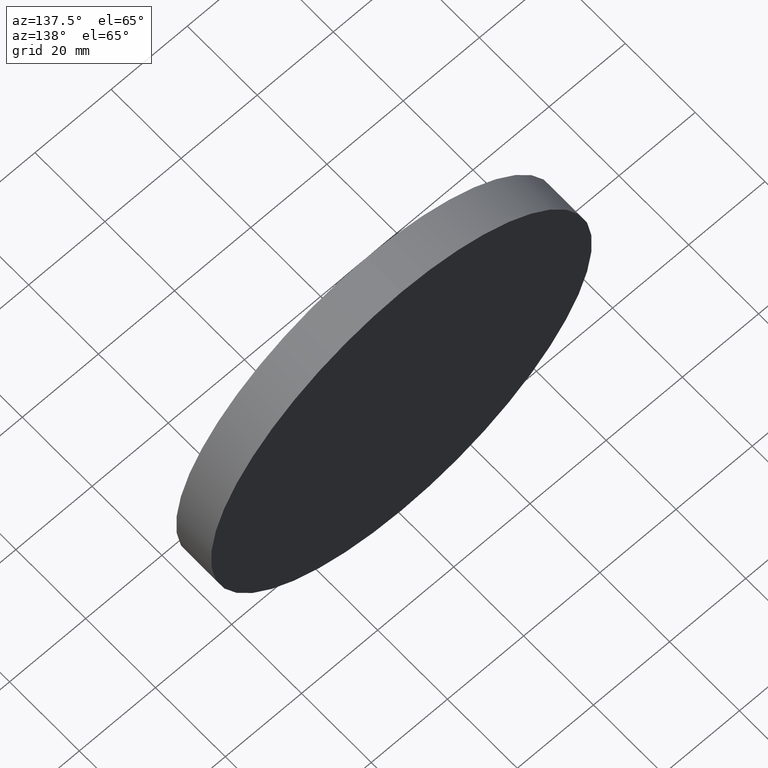
[diagram: clean part render]
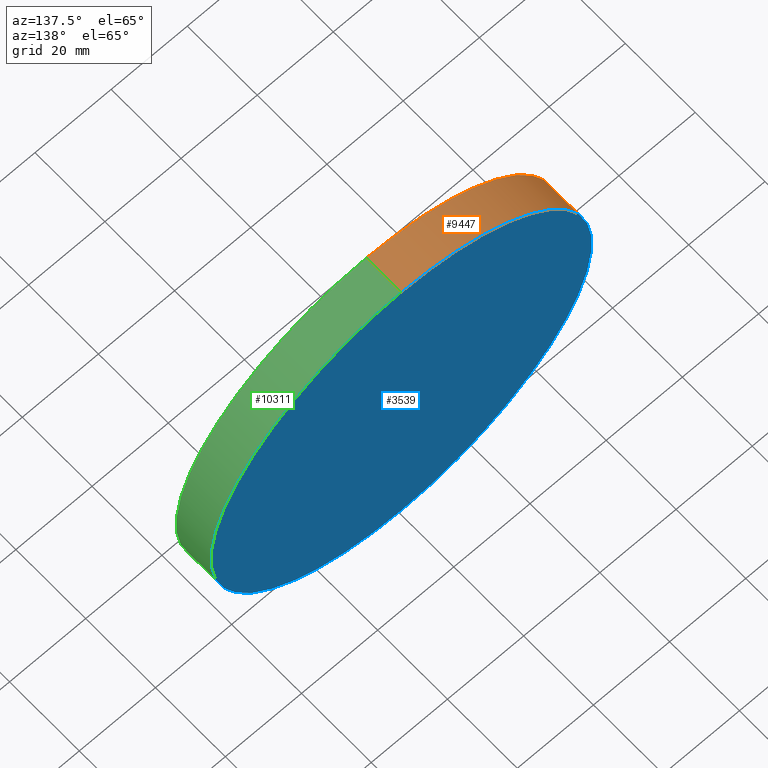
[diagram: same view with three faces highlighted in distinct colors, each labeled with its STEP entity id]
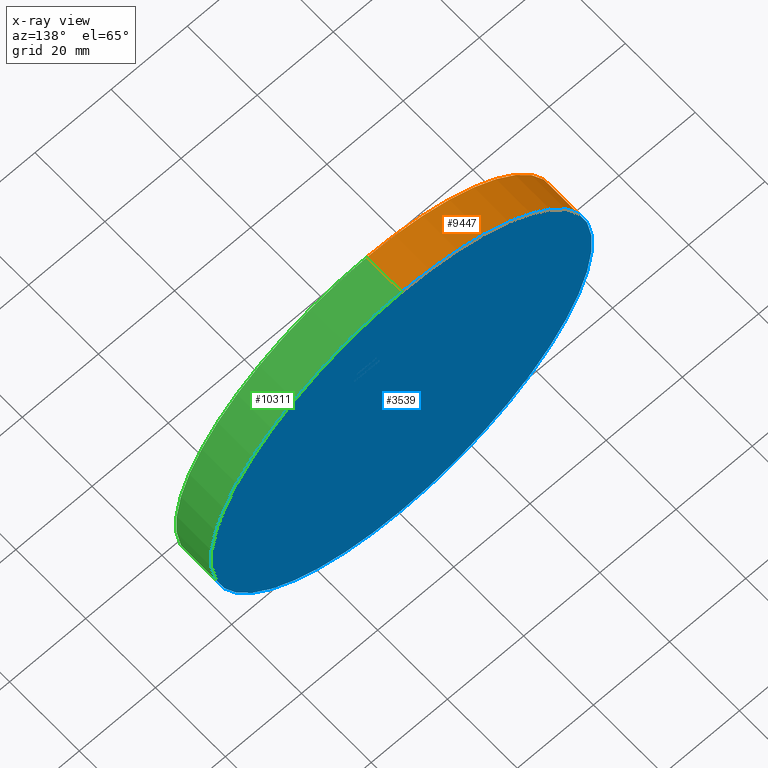
[diagram: x-ray of the same camera — body ghosted, the three highlighted faces saturated]
A machine part, auxiliary view with three faces highlighted in distinct colors.
The next image is the same camera in x-ray (body ghosted, the three faces saturated) — at least one of them is partly hidden behind the body in this view.
Their STEP definitions:

[orange] entity #9447 — the highlighted cylindrical surface (partial cylindrical patch) has radius 50 mm, axis along (-0, -1, -0).
#321 = EDGE_CURVE ( 'NONE', #9534, #5415, #7828, .T. ) ;
#1432 = ORIENTED_EDGE ( 'NONE', *, *, #11675, .T. ) ;
#1474 = ORIENTED_EDGE ( 'NONE', *, *, #13265, .F. ) ;
#1550 = VECTOR ( 'NONE', #13308, 1000.000000000000000 ) ;
#2516 = DIRECTION ( 'NONE',  ( 0.000000000000000000, 1.000000000000000000, 0.000000000000000000 ) ) ;
#3033 = ORIENTED_EDGE ( 'NONE', *, *, #321, .T. ) ;
#3045 = ORIENTED_EDGE ( 'NONE', *, *, #4196, .F. ) ;
#3183 = CARTESIAN_POINT ( 'NONE',  ( 0.000000000000000000, 5.000000000000000000, 0.000000000000000000 ) ) ;
#3652 = DIRECTION ( 'NONE',  ( 0.000000000000000000, 0.000000000000000000, -1.000000000000000000 ) ) ;
#4196 = EDGE_CURVE ( 'NONE', #9534, #8489, #7600, .T. ) ;
#4285 = DIRECTION ( 'NONE',  ( 0.000000000000000000, 1.000000000000000000, 0.000000000000000000 ) ) ;
#4483 = CARTESIAN_POINT ( 'NONE',  ( 6.123233995736766085E-15, 5.000000000000000000, 50.00000000000000000 ) ) ;
#4982 = LINE ( 'NONE', #4483, #1550 ) ;
#5146 = AXIS2_PLACEMENT_3D ( 'NONE', #3183, #4285, #8758 ) ;
#5415 = VERTEX_POINT ( 'NONE', #8274 ) ;
#5938 = CARTESIAN_POINT ( 'NONE',  ( 0.000000000000000000, 5.000000000000000000, 0.000000000000000000 ) ) ;
#5980 = DIRECTION ( 'NONE',  ( -0.000000000000000000, -1.000000000000000000, -0.000000000000000000 ) ) ;
#6044 = CIRCLE ( 'NONE', #14058, 50.00000000000000000 ) ;
#7600 = CIRCLE ( 'NONE', #5146, 50.00000000000000000 ) ;
#7828 = LINE ( 'NONE', #10548, #13863 ) ;
#8274 = CARTESIAN_POINT ( 'NONE',  ( 0.000000000000000000, -5.000000000000000000, -50.00000000000000000 ) ) ;
#8489 = VERTEX_POINT ( 'NONE', #10294 ) ;
#8502 = CARTESIAN_POINT ( 'NONE',  ( 6.123233995736766085E-15, -5.000000000000000000, 50.00000000000000000 ) ) ;
#8758 = DIRECTION ( 'NONE',  ( 0.000000000000000000, 0.000000000000000000, 1.000000000000000000 ) ) ;
#9447 = ADVANCED_FACE ( 'NONE', ( #11424 ), #10722, .T. ) ;
#9470 = CARTESIAN_POINT ( 'NONE',  ( 0.000000000000000000, 5.000000000000000000, -50.00000000000000000 ) ) ;
#9534 = VERTEX_POINT ( 'NONE', #9470 ) ;
#10294 = CARTESIAN_POINT ( 'NONE',  ( 6.123233995736766085E-15, 5.000000000000000000, 50.00000000000000000 ) ) ;
#10548 = CARTESIAN_POINT ( 'NONE',  ( 0.000000000000000000, 5.000000000000000000, -50.00000000000000000 ) ) ;
#10562 = EDGE_LOOP ( 'NONE', ( #1474, #3045, #3033, #1432 ) ) ;
#10722 = CYLINDRICAL_SURFACE ( 'NONE', #11930, 50.00000000000000000 ) ;
#11424 = FACE_OUTER_BOUND ( 'NONE', #10562, .T. ) ;
#11675 = EDGE_CURVE ( 'NONE', #5415, #12484, #6044, .T. ) ;
#11930 = AXIS2_PLACEMENT_3D ( 'NONE', #5938, #5980, #3652 ) ;
#12344 = DIRECTION ( 'NONE',  ( 0.000000000000000000, 0.000000000000000000, 1.000000000000000000 ) ) ;
#12441 = CARTESIAN_POINT ( 'NONE',  ( 0.000000000000000000, -5.000000000000000000, 0.000000000000000000 ) ) ;
#12484 = VERTEX_POINT ( 'NONE', #8502 ) ;
#13265 = EDGE_CURVE ( 'NONE', #8489, #12484, #4982, .T. ) ;
#13308 = DIRECTION ( 'NONE',  ( -0.000000000000000000, -1.000000000000000000, -0.000000000000000000 ) ) ;
#13863 = VECTOR ( 'NONE', #13922, 1000.000000000000000 ) ;
#13922 = DIRECTION ( 'NONE',  ( -0.000000000000000000, -1.000000000000000000, -0.000000000000000000 ) ) ;
#14058 = AXIS2_PLACEMENT_3D ( 'NONE', #12441, #2516, #12344 ) ;

[blue] entity #3539 — the highlighted planar face has unit normal (0, 1, 0).
#1294 = AXIS2_PLACEMENT_3D ( 'NONE', #7775, #6812, #5541 ) ;
#3183 = CARTESIAN_POINT ( 'NONE',  ( 0.000000000000000000, 5.000000000000000000, 0.000000000000000000 ) ) ;
#3539 = ADVANCED_FACE ( 'NONE', ( #14162 ), #6664, .T. ) ;
#4196 = EDGE_CURVE ( 'NONE', #9534, #8489, #7600, .T. ) ;
#4285 = DIRECTION ( 'NONE',  ( 0.000000000000000000, 1.000000000000000000, 0.000000000000000000 ) ) ;
#5146 = AXIS2_PLACEMENT_3D ( 'NONE', #3183, #4285, #8758 ) ;
#5541 = DIRECTION ( 'NONE',  ( 0.000000000000000000, -0.000000000000000000, 1.000000000000000000 ) ) ;
#5897 = ORIENTED_EDGE ( 'NONE', *, *, #6588, .T. ) ;
#6334 = CARTESIAN_POINT ( 'NONE',  ( 0.000000000000000000, 5.000000000000000000, 0.000000000000000000 ) ) ;
#6396 = ORIENTED_EDGE ( 'NONE', *, *, #4196, .T. ) ;
#6588 = EDGE_CURVE ( 'NONE', #8489, #9534, #12754, .T. ) ;
#6664 = PLANE ( 'NONE',  #1294 ) ;
#6812 = DIRECTION ( 'NONE',  ( 0.000000000000000000, 1.000000000000000000, 0.000000000000000000 ) ) ;
#7600 = CIRCLE ( 'NONE', #5146, 50.00000000000000000 ) ;
#7775 = CARTESIAN_POINT ( 'NONE',  ( 0.000000000000000000, 5.000000000000000000, 0.000000000000000000 ) ) ;
#8489 = VERTEX_POINT ( 'NONE', #10294 ) ;
#8511 = DIRECTION ( 'NONE',  ( 0.000000000000000000, 1.000000000000000000, 0.000000000000000000 ) ) ;
#8758 = DIRECTION ( 'NONE',  ( 0.000000000000000000, 0.000000000000000000, 1.000000000000000000 ) ) ;
#9470 = CARTESIAN_POINT ( 'NONE',  ( 0.000000000000000000, 5.000000000000000000, -50.00000000000000000 ) ) ;
#9534 = VERTEX_POINT ( 'NONE', #9470 ) ;
#10294 = CARTESIAN_POINT ( 'NONE',  ( 6.123233995736766085E-15, 5.000000000000000000, 50.00000000000000000 ) ) ;
#10542 = DIRECTION ( 'NONE',  ( 0.000000000000000000, 0.000000000000000000, 1.000000000000000000 ) ) ;
#11667 = EDGE_LOOP ( 'NONE', ( #6396, #5897 ) ) ;
#12754 = CIRCLE ( 'NONE', #12759, 50.00000000000000000 ) ;
#12759 = AXIS2_PLACEMENT_3D ( 'NONE', #6334, #8511, #10542 ) ;
#14162 = FACE_OUTER_BOUND ( 'NONE', #11667, .T. ) ;

[green] entity #10311 — the highlighted cylindrical surface (partial cylindrical patch) has radius 50 mm, axis along (-0, -1, -0).
#321 = EDGE_CURVE ( 'NONE', #9534, #5415, #7828, .T. ) ;
#1550 = VECTOR ( 'NONE', #13308, 1000.000000000000000 ) ;
#2250 = EDGE_LOOP ( 'NONE', ( #3288, #4423, #11824, #9089 ) ) ;
#2691 = DIRECTION ( 'NONE',  ( 0.000000000000000000, 1.000000000000000000, 0.000000000000000000 ) ) ;
#3288 = ORIENTED_EDGE ( 'NONE', *, *, #6588, .F. ) ;
#4340 = CYLINDRICAL_SURFACE ( 'NONE', #7400, 50.00000000000000000 ) ;
#4423 = ORIENTED_EDGE ( 'NONE', *, *, #13265, .T. ) ;
#4483 = CARTESIAN_POINT ( 'NONE',  ( 6.123233995736766085E-15, 5.000000000000000000, 50.00000000000000000 ) ) ;
#4982 = LINE ( 'NONE', #4483, #1550 ) ;
#5415 = VERTEX_POINT ( 'NONE', #8274 ) ;
#6334 = CARTESIAN_POINT ( 'NONE',  ( 0.000000000000000000, 5.000000000000000000, 0.000000000000000000 ) ) ;
#6588 = EDGE_CURVE ( 'NONE', #8489, #9534, #12754, .T. ) ;
#7400 = AXIS2_PLACEMENT_3D ( 'NONE', #14246, #12134, #9725 ) ;
#7676 = AXIS2_PLACEMENT_3D ( 'NONE', #12565, #2691, #10296 ) ;
#7828 = LINE ( 'NONE', #10548, #13863 ) ;
#8274 = CARTESIAN_POINT ( 'NONE',  ( 0.000000000000000000, -5.000000000000000000, -50.00000000000000000 ) ) ;
#8489 = VERTEX_POINT ( 'NONE', #10294 ) ;
#8502 = CARTESIAN_POINT ( 'NONE',  ( 6.123233995736766085E-15, -5.000000000000000000, 50.00000000000000000 ) ) ;
#8511 = DIRECTION ( 'NONE',  ( 0.000000000000000000, 1.000000000000000000, 0.000000000000000000 ) ) ;
#9089 = ORIENTED_EDGE ( 'NONE', *, *, #321, .F. ) ;
#9470 = CARTESIAN_POINT ( 'NONE',  ( 0.000000000000000000, 5.000000000000000000, -50.00000000000000000 ) ) ;
#9534 = VERTEX_POINT ( 'NONE', #9470 ) ;
#9725 = DIRECTION ( 'NONE',  ( 0.000000000000000000, 0.000000000000000000, -1.000000000000000000 ) ) ;
#10294 = CARTESIAN_POINT ( 'NONE',  ( 6.123233995736766085E-15, 5.000000000000000000, 50.00000000000000000 ) ) ;
#10296 = DIRECTION ( 'NONE',  ( 0.000000000000000000, 0.000000000000000000, 1.000000000000000000 ) ) ;
#10311 = ADVANCED_FACE ( 'NONE', ( #12615 ), #4340, .T. ) ;
#10535 = CIRCLE ( 'NONE', #7676, 50.00000000000000000 ) ;
#10542 = DIRECTION ( 'NONE',  ( 0.000000000000000000, 0.000000000000000000, 1.000000000000000000 ) ) ;
#10548 = CARTESIAN_POINT ( 'NONE',  ( 0.000000000000000000, 5.000000000000000000, -50.00000000000000000 ) ) ;
#10939 = EDGE_CURVE ( 'NONE', #12484, #5415, #10535, .T. ) ;
#11824 = ORIENTED_EDGE ( 'NONE', *, *, #10939, .T. ) ;
#12134 = DIRECTION ( 'NONE',  ( -0.000000000000000000, -1.000000000000000000, -0.000000000000000000 ) ) ;
#12484 = VERTEX_POINT ( 'NONE', #8502 ) ;
#12565 = CARTESIAN_POINT ( 'NONE',  ( 0.000000000000000000, -5.000000000000000000, 0.000000000000000000 ) ) ;
#12615 = FACE_OUTER_BOUND ( 'NONE', #2250, .T. ) ;
#12754 = CIRCLE ( 'NONE', #12759, 50.00000000000000000 ) ;
#12759 = AXIS2_PLACEMENT_3D ( 'NONE', #6334, #8511, #10542 ) ;
#13265 = EDGE_CURVE ( 'NONE', #8489, #12484, #4982, .T. ) ;
#13308 = DIRECTION ( 'NONE',  ( -0.000000000000000000, -1.000000000000000000, -0.000000000000000000 ) ) ;
#13863 = VECTOR ( 'NONE', #13922, 1000.000000000000000 ) ;
#13922 = DIRECTION ( 'NONE',  ( -0.000000000000000000, -1.000000000000000000, -0.000000000000000000 ) ) ;
#14246 = CARTESIAN_POINT ( 'NONE',  ( 0.000000000000000000, 5.000000000000000000, 0.000000000000000000 ) ) ;